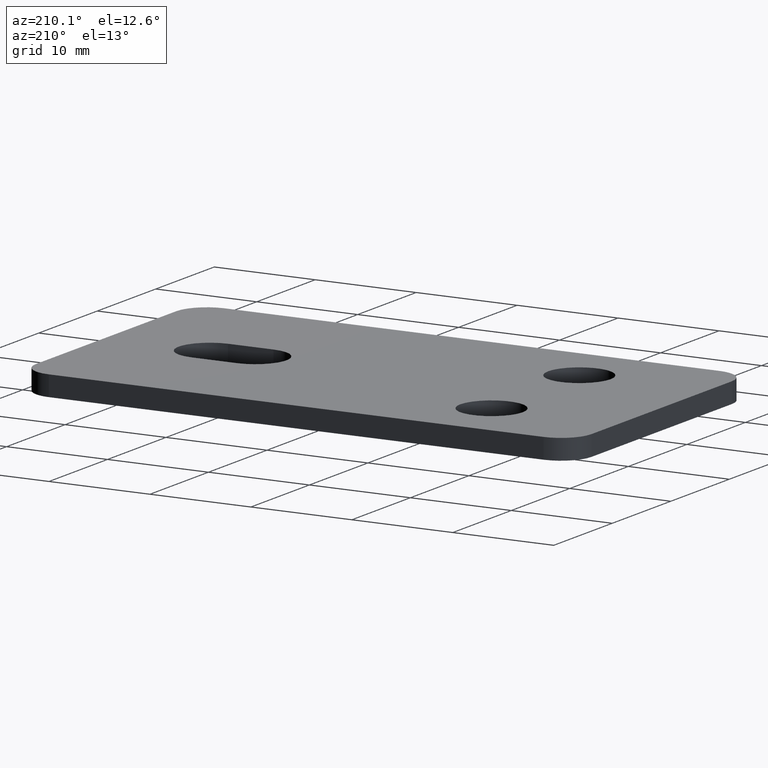
[diagram: clean part render]
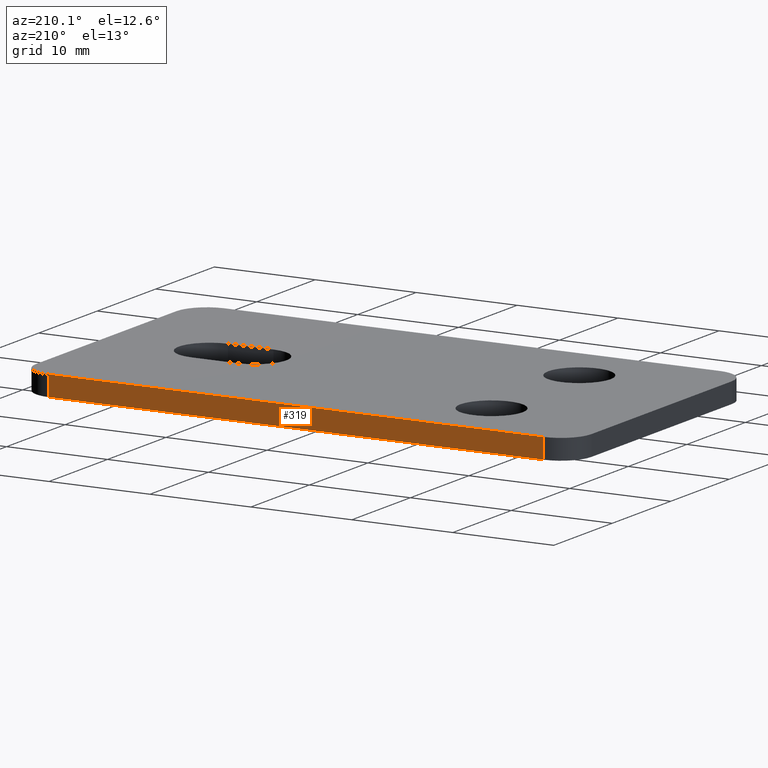
[diagram: same view with one face highlighted and labeled with its STEP entity id]
A machine part, auxiliary view. The second image highlights one B-rep face of the part: STEP entity #319.
In plain terms, the highlighted planar face has unit normal (0, 1, 0).
Its self-contained STEP definition (entity closure, byte-faithful):
#27=PLANE('',#369);
#41=FACE_OUTER_BOUND('',#60,.T.);
#60=EDGE_LOOP('',(#269,#270,#271,#272));
#75=LINE('',#503,#101);
#80=LINE('',#515,#106);
#89=LINE('',#547,#115);
#90=LINE('',#550,#116);
#101=VECTOR('',#407,10.);
#106=VECTOR('',#418,10.);
#115=VECTOR('',#451,10.);
#116=VECTOR('',#456,10.);
#146=VERTEX_POINT('',#500);
#147=VERTEX_POINT('',#502);
#151=VERTEX_POINT('',#514);
#162=VERTEX_POINT('',#546);
#180=EDGE_CURVE('',#146,#147,#75,.T.);
#186=EDGE_CURVE('',#147,#151,#80,.T.);
#202=EDGE_CURVE('',#151,#162,#89,.T.);
#204=EDGE_CURVE('',#162,#146,#90,.T.);
#269=ORIENTED_EDGE('',*,*,#180,.F.);
#270=ORIENTED_EDGE('',*,*,#204,.F.);
#271=ORIENTED_EDGE('',*,*,#202,.F.);
#272=ORIENTED_EDGE('',*,*,#186,.F.);
#319=ADVANCED_FACE('',(#41),#27,.T.);
#369=AXIS2_PLACEMENT_3D('',#549,#454,#455);
#407=DIRECTION('',(0.,0.,-1.));
#418=DIRECTION('',(1.,-4.03717463500057E-17,0.));
#451=DIRECTION('',(0.,0.,1.));
#454=DIRECTION('center_axis',(4.03717463500057E-17,1.,0.));
#455=DIRECTION('ref_axis',(-1.,4.03717463500057E-17,0.));
#456=DIRECTION('',(-1.,4.03717463500057E-17,0.));
#500=CARTESIAN_POINT('',(-24.5,15.,1.));
#502=CARTESIAN_POINT('',(-24.5,15.,-1.));
#503=CARTESIAN_POINT('',(-24.5,15.,0.));
#514=CARTESIAN_POINT('',(24.5,15.,-1.));
#515=CARTESIAN_POINT('',(-27.5,15.,-1.));
#546=CARTESIAN_POINT('',(24.5,15.,1.));
#547=CARTESIAN_POINT('',(24.5,15.,0.));
#549=CARTESIAN_POINT('Origin',(27.5,15.,0.));
#550=CARTESIAN_POINT('',(-27.5,15.,1.));